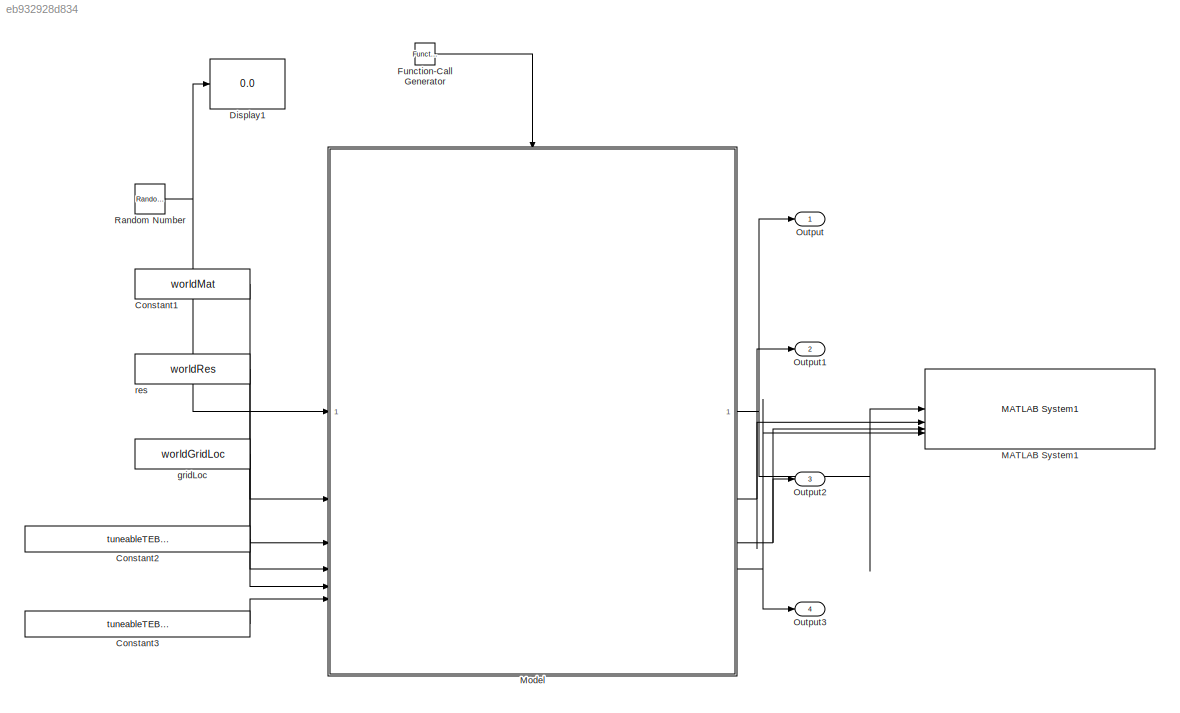
MODEL slx_eb932928d834
KIND model
CONFIG AbsTol = auto
CONFIG EnableMultiTasking = off
CONFIG FixedStep = auto
CONFIG InitFcn = extractLocalMapSetup
CONFIG MaxStep = auto
CONFIG MinStep = auto
CONFIG RelTol = 1e-3
CONFIG SampleTimeConstraint = Unconstrained
CONFIG SolverName = VariableStepAuto
CONFIG StartTime = 0.0
CONFIG StopTime = 10.0
BLOCK [Constant] Constant1
  Value = worldMat
BLOCK [Constant] Constant2
  Value = tuneableTEBParams.MaxVelocity(1)
BLOCK [Constant] Constant3
  Value = tuneableTEBParams.LookaheadTime
BLOCK [Display] Display1
  Decimation = 1
BLOCK [Reference] Function-Call Generator  REF=simulink/Ports &
Subsystems/Function-Call
Generator
  SourceBlock = simulink/Ports &\nSubsystems/Function-Call\nGenerator
  SourceType = Function-Call Generator
BLOCK [Reference] MATLAB System1  REF=roshelperlib/MATLAB System1  (lib defined in slx_3328ea0e13a5)
  SourceBlock = roshelperlib/MATLAB System1
  SourceType = exampleHelperMapVisualizerSys
BLOCK [ModelReference] Model
  ModelNameDialog = extractLocalMap.slx
  ModelReferenceVersion = 2.0
  TriggerPortName = function
  TriggerPortStatesWhenEnabling = held
  TriggerPortTriggerType = function-call
BLOCK [Outport] Output
BLOCK [Outport] Output1
  Port = 2
BLOCK [Outport] Output2
  Port = 3
BLOCK [Outport] Output3
  Port = 4
BLOCK [RandomNumber] Random Number
  Mean = [500 500 0]
  Variance = [100 100 0]
BLOCK [Constant] gridLoc
  Value = worldGridLoc
  VectorParams1D = off
BLOCK [Constant] res
  Value = worldRes
LINE Constant1:1 -> Model:2
LINE Constant2:1 -> Model:5
LINE Constant3:1 -> Model:6
LINE Function-Call Generator:1 -> Model:trigger
NET Model:1 -> MATLAB System1:1, Output:1
NET Model:2 -> MATLAB System1:2, Output1:1
NET Model:3 -> MATLAB System1:3, Output2:1
NET Model:4 -> MATLAB System1:4, Output3:1
NET Random Number:1 -> Display1:1, Model:1
LINE gridLoc:1 -> Model:4
LINE res:1 -> Model:3
note: NET lines group one-source signal fan-out (src -> all destinations, sorted); 1:1 wires keep LINE
